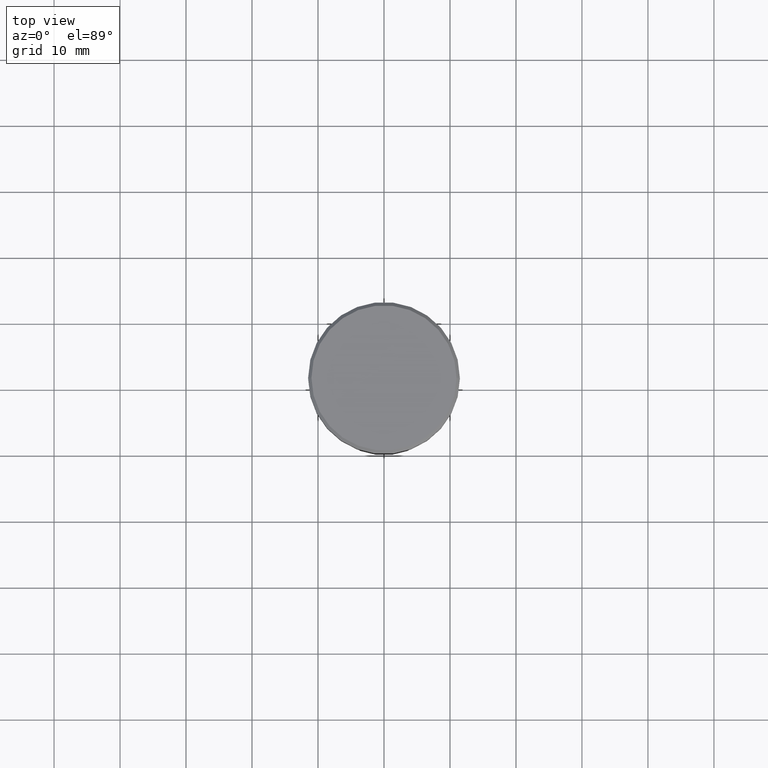
[diagram: clean part render]
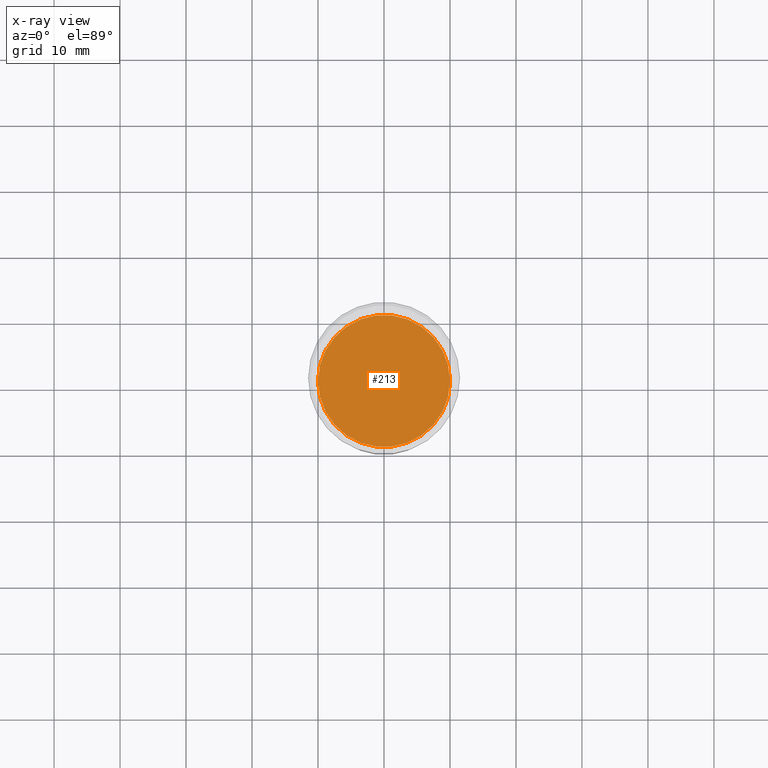
[diagram: x-ray — body ghosted, one internal face saturated and labeled with its STEP entity id]
A machine part, top view, then the same camera in x-ray: the body is ghosted and one INTERNAL B-rep face — a face not visible from any outside direction — is saturated and labeled: STEP entity #213.
In plain terms, the highlighted planar face has unit normal (0, 0, -1).
Its self-contained STEP definition (entity closure, byte-faithful):
#28 = EDGE_CURVE ( 'NONE', #508, #216, #510, .T. ) ;
#42 = CARTESIAN_POINT ( 'NONE',  ( -10.00000000000000000, 1.224646799147353256E-15, -28.00000000000000000 ) ) ;
#125 = AXIS2_PLACEMENT_3D ( 'NONE', #206, #427, #217 ) ;
#131 = EDGE_LOOP ( 'NONE', ( #948, #703 ) ) ;
#184 = EDGE_CURVE ( 'NONE', #216, #508, #1104, .T. ) ;
#206 = CARTESIAN_POINT ( 'NONE',  ( 0.000000000000000000, 0.000000000000000000, -28.00000000000000000 ) ) ;
#213 = ADVANCED_FACE ( 'NONE', ( #309 ), #918, .T. ) ;
#216 = VERTEX_POINT ( 'NONE', #42 ) ;
#217 = DIRECTION ( 'NONE',  ( -1.000000000000000000, 0.000000000000000000, 0.000000000000000000 ) ) ;
#231 = DIRECTION ( 'NONE',  ( 0.000000000000000000, 0.000000000000000000, -1.000000000000000000 ) ) ;
#309 = FACE_OUTER_BOUND ( 'NONE', #131, .T. ) ;
#427 = DIRECTION ( 'NONE',  ( 0.000000000000000000, 0.000000000000000000, -1.000000000000000000 ) ) ;
#494 = DIRECTION ( 'NONE',  ( -1.000000000000000000, 0.000000000000000000, -0.000000000000000000 ) ) ;
#508 = VERTEX_POINT ( 'NONE', #546 ) ;
#510 = CIRCLE ( 'NONE', #812, 10.00000000000000000 ) ;
#546 = CARTESIAN_POINT ( 'NONE',  ( 10.00000000000000000, 0.000000000000000000, -28.00000000000000000 ) ) ;
#573 = CARTESIAN_POINT ( 'NONE',  ( 0.000000000000000000, 0.000000000000000000, -28.00000000000000000 ) ) ;
#577 = CARTESIAN_POINT ( 'NONE',  ( 0.000000000000000000, 0.000000000000000000, -28.00000000000000000 ) ) ;
#580 = AXIS2_PLACEMENT_3D ( 'NONE', #573, #923, #494 ) ;
#703 = ORIENTED_EDGE ( 'NONE', *, *, #184, .T. ) ;
#812 = AXIS2_PLACEMENT_3D ( 'NONE', #577, #231, #941 ) ;
#918 = PLANE ( 'NONE',  #580 ) ;
#923 = DIRECTION ( 'NONE',  ( 0.000000000000000000, 0.000000000000000000, -1.000000000000000000 ) ) ;
#941 = DIRECTION ( 'NONE',  ( -1.000000000000000000, 0.000000000000000000, 0.000000000000000000 ) ) ;
#948 = ORIENTED_EDGE ( 'NONE', *, *, #28, .T. ) ;
#1104 = CIRCLE ( 'NONE', #125, 10.00000000000000000 ) ;